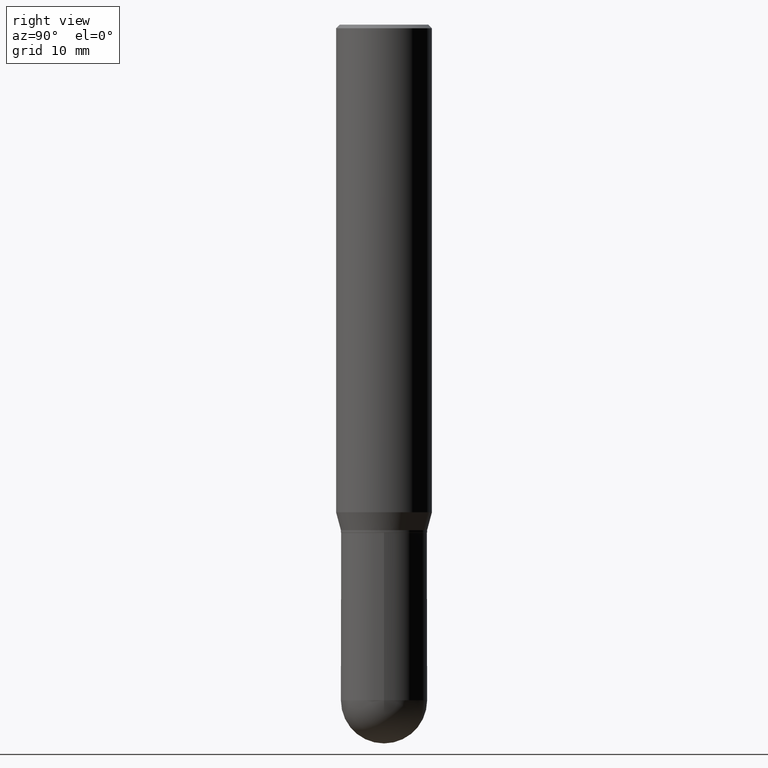
[diagram: clean part render]
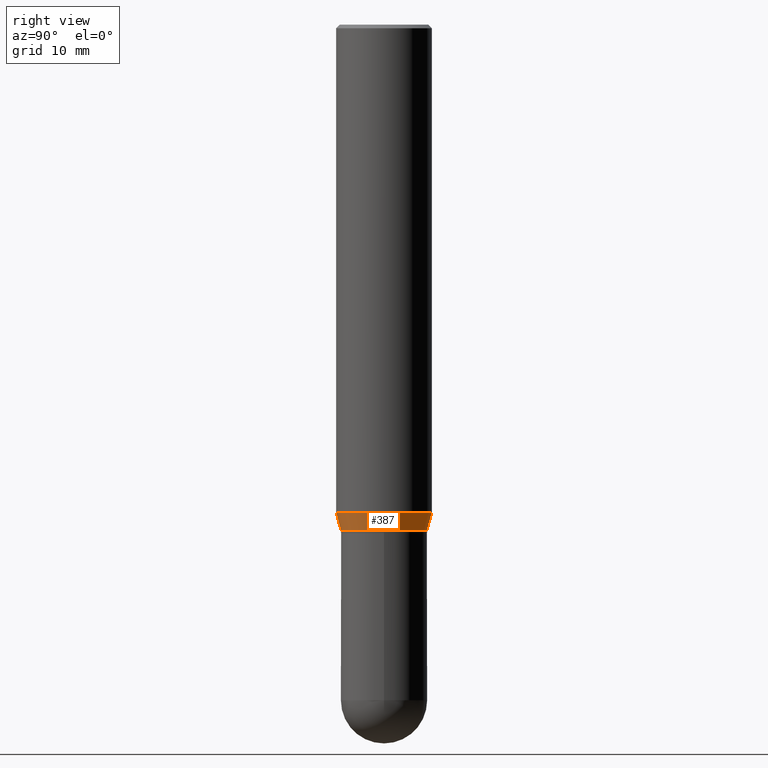
[diagram: same view with one face highlighted and labeled with its STEP entity id]
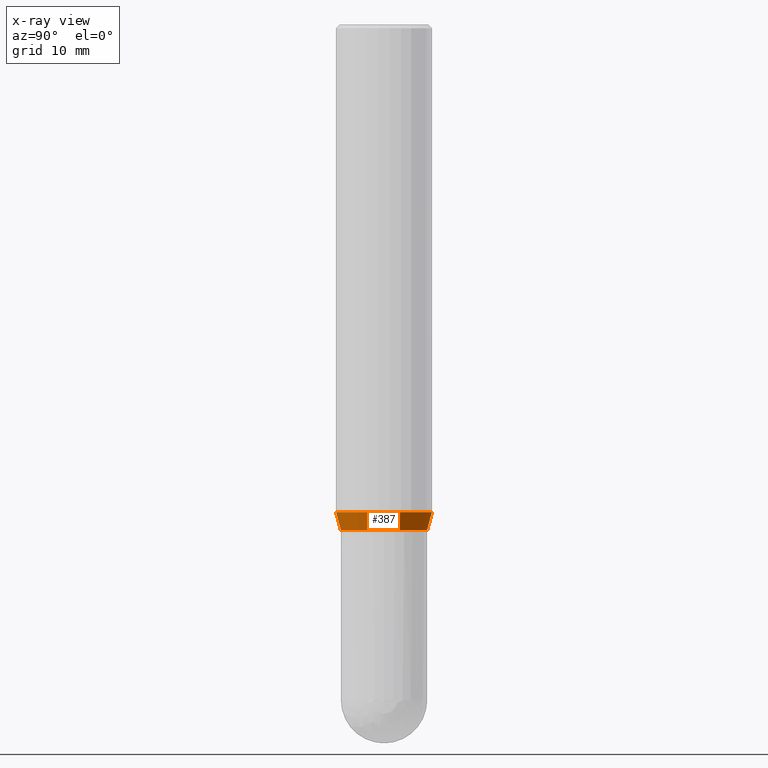
[diagram: x-ray of the same camera — body ghosted, the highlighted face saturated]
A machine part, right view. The second image highlights one B-rep face of the part: STEP entity #387.
The next image is the same camera in x-ray: the body ghosted, the highlighted face saturated — about 0% of this face is hidden behind the body in this view.
In plain terms, the highlighted conical surface has half-angle 15 deg.
Its self-contained STEP definition (entity closure, byte-faithful):
#5 = CARTESIAN_POINT ( 'NONE',  ( -1.237031838352071315E-15, -0.1771500000000072461, -2.076699999999999768 ) ) ;
#33 = CARTESIAN_POINT ( 'NONE',  ( 5.078953579696428568E-29, -7.250117004682970319E-15, -2.076700000000000212 ) ) ;
#36 = DIRECTION ( 'NONE',  ( 1.839019923739597554E-15, 0.2588190451025245697, 0.9659258262890670910 ) ) ;
#41 = ORIENTED_EDGE ( 'NONE', *, *, #333, .T. ) ;
#69 = VECTOR ( 'NONE', #36, 39.37007874015748854 ) ;
#87 = DIRECTION ( 'NONE',  ( -1.807323732225327773E-15, -0.2588190451025178529, 0.9659258262890690894 ) ) ;
#91 = DIRECTION ( 'NONE',  ( -2.445684778589314030E-29, 3.491172054067977715E-15, 1.000000000000000000 ) ) ;
#97 = AXIS2_PLACEMENT_3D ( 'NONE', #449, #91, #131 ) ;
#112 = ORIENTED_EDGE ( 'NONE', *, *, #464, .F. ) ;
#131 = DIRECTION ( 'NONE',  ( -6.982962677686265922E-15, -1.000000000000000000, 4.163344669033675634E-15 ) ) ;
#132 = DIRECTION ( 'NONE',  ( -2.445684778589314030E-29, 3.491172054067977715E-15, 1.000000000000000000 ) ) ;
#152 = EDGE_CURVE ( 'NONE', #215, #321, #446, .T. ) ;
#157 = CARTESIAN_POINT ( 'NONE',  ( 1.398703375343805514E-15, 0.1968499999999929750, -2.003178599090894352 ) ) ;
#159 = CARTESIAN_POINT ( 'NONE',  ( -1.237031838352071315E-15, -0.1771500000000072461, -2.076699999999999768 ) ) ;
#209 = AXIS2_PLACEMENT_3D ( 'NONE', #486, #132, #396 ) ;
#215 = VERTEX_POINT ( 'NONE', #159 ) ;
#217 = VECTOR ( 'NONE', #87, 39.37007874015748143 ) ;
#232 = CARTESIAN_POINT ( 'NONE',  ( 1.258726456399067980E-15, 0.1771499999999927855, -2.076700000000000657 ) ) ;
#249 = AXIS2_PLACEMENT_3D ( 'NONE', #33, #276, #431 ) ;
#260 = EDGE_CURVE ( 'NONE', #215, #309, #268, .T. ) ;
#268 = CIRCLE ( 'NONE', #209, 0.1771500000000000019 ) ;
#276 = DIRECTION ( 'NONE',  ( -2.445684778589314030E-29, 3.491172054067977715E-15, 1.000000000000000000 ) ) ;
#288 = CONICAL_SURFACE ( 'NONE', #249, 0.1771500000000000019, 0.2617993877991499074 ) ;
#309 = VERTEX_POINT ( 'NONE', #477 ) ;
#311 = ORIENTED_EDGE ( 'NONE', *, *, #152, .F. ) ;
#321 = VERTEX_POINT ( 'NONE', #510 ) ;
#333 = EDGE_CURVE ( 'NONE', #309, #371, #393, .T. ) ;
#371 = VERTEX_POINT ( 'NONE', #157 ) ;
#387 = ADVANCED_FACE ( 'NONE', ( #509 ), #288, .T. ) ;
#393 = LINE ( 'NONE', #232, #69 ) ;
#396 = DIRECTION ( 'NONE',  ( -6.982962677686265922E-15, -1.000000000000000000, 3.084220145260246224E-15 ) ) ;
#404 = EDGE_LOOP ( 'NONE', ( #494, #41, #112, #311 ) ) ;
#431 = DIRECTION ( 'NONE',  ( -6.982962677686265922E-15, -1.000000000000000000, 3.084220145260246224E-15 ) ) ;
#446 = LINE ( 'NONE', #5, #217 ) ;
#449 = CARTESIAN_POINT ( 'NONE',  ( 4.899143408592464903E-29, -6.993441144453169598E-15, -2.003178599090893464 ) ) ;
#464 = EDGE_CURVE ( 'NONE', #321, #371, #507, .T. ) ;
#477 = CARTESIAN_POINT ( 'NONE',  ( 1.328714915871437240E-15, 0.1771499999999927855, -2.076700000000000657 ) ) ;
#486 = CARTESIAN_POINT ( 'NONE',  ( 5.078953579696428568E-29, -7.250117004682970319E-15, -2.076700000000000212 ) ) ;
#494 = ORIENTED_EDGE ( 'NONE', *, *, #260, .T. ) ;
#507 = CIRCLE ( 'NONE', #97, 0.1968499999999999694 ) ;
#509 = FACE_OUTER_BOUND ( 'NONE', #404, .T. ) ;
#510 = CARTESIAN_POINT ( 'NONE',  ( -1.374596203102492502E-15, -0.1968500000000069916, -2.003178599090893020 ) ) ;